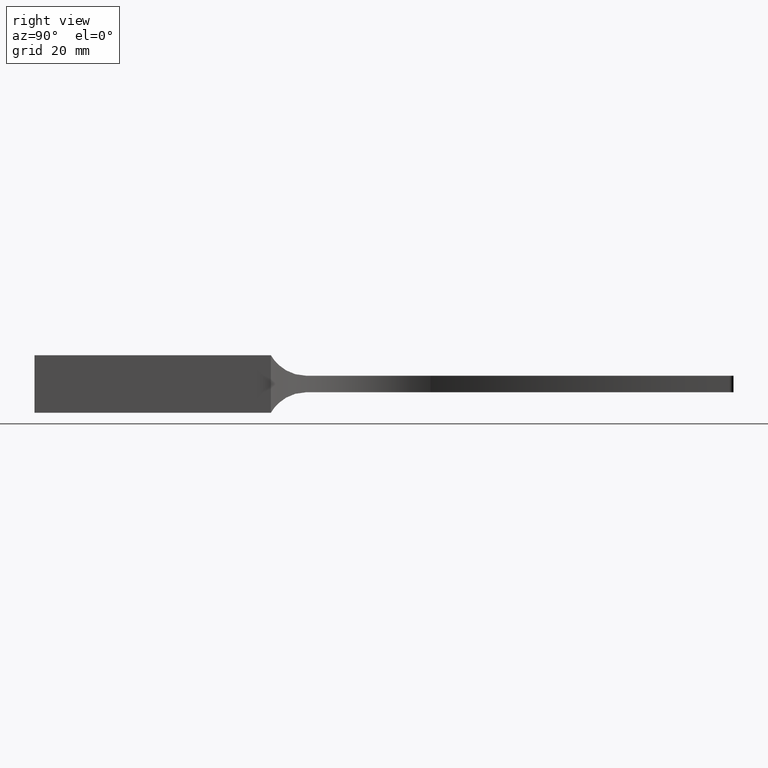
[diagram: clean part render]
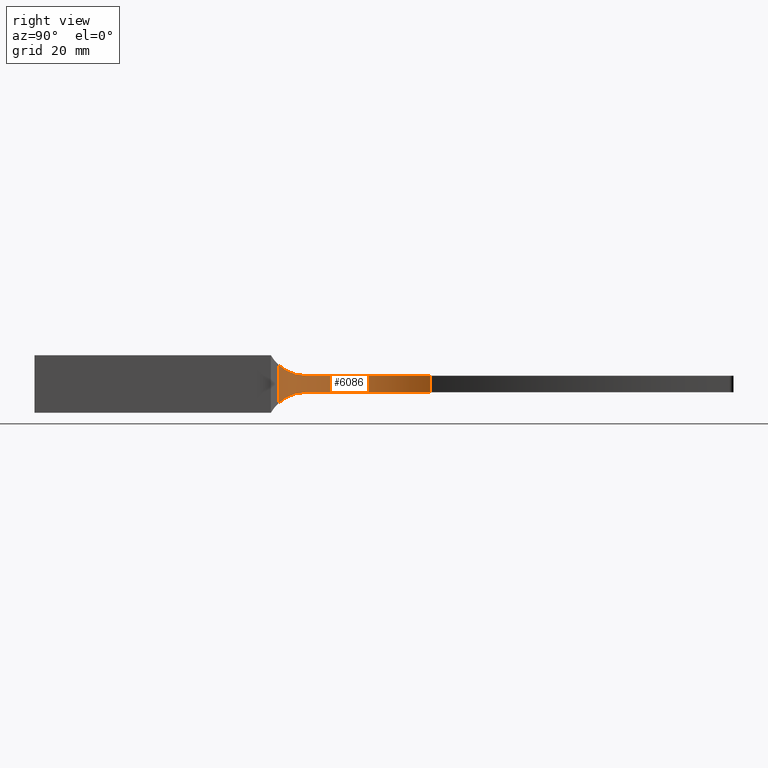
[diagram: same view with one face highlighted and labeled with its STEP entity id]
A machine part, right view. The second image highlights one B-rep face of the part: STEP entity #6086.
In plain terms, the highlighted cylindrical surface (partial cylindrical patch) has radius 26 mm, axis along (-0, -0, -1).
Its self-contained STEP definition (entity closure, byte-faithful):
#116 = DIRECTION ( 'NONE',  ( -0.0000000000000000000, 0.0000000000000000000, 1.000000000000000000 ) ) ;
#469 = CARTESIAN_POINT ( 'NONE',  ( 18.43476238035067300, 65.43425512295479500, -2.020242681155177700 ) ) ;
#896 = CARTESIAN_POINT ( 'NONE',  ( 17.78402066115250000, 64.73031084797040100, 2.080495572099116500 ) ) ;
#1081 = CYLINDRICAL_SURFACE ( 'NONE', #3604, 26.00000000000004300 ) ;
#1195 = EDGE_LOOP ( 'NONE', ( #8853, #5614, #6985, #1654, #2553, #6291 ) ) ;
#1211 = CARTESIAN_POINT ( 'NONE',  ( 19.06886061593461800, 66.16025403784439600, -2.000000000000000000 ) ) ;
#1479 = EDGE_CURVE ( 'NONE', #9373, #7909, #3839, .T. ) ;
#1529 = CARTESIAN_POINT ( 'NONE',  ( 21.57350175787799500, 96.31814398917801200, -2.000000000000000000 ) ) ;
#1614 = CARTESIAN_POINT ( 'NONE',  ( 16.39938269061379500, 63.44127846361297400, 2.371450443069547600 ) ) ;
#1644 = AXIS2_PLACEMENT_3D ( 'NONE', #4478, #116, #5199 ) ;
#1654 = ORIENTED_EDGE ( 'NONE', *, *, #5670, .T. ) ;
#2083 = CARTESIAN_POINT ( 'NONE',  ( 10.29642975987606800, 59.45247741029773900, 4.583415023412808200 ) ) ;
#2267 = VERTEX_POINT ( 'NONE', #6022 ) ;
#2341 = CARTESIAN_POINT ( 'NONE',  ( 15.31177591070957100, 62.53835867823524800, 2.673961191489671500 ) ) ;
#2479 = CARTESIAN_POINT ( 'NONE',  ( -0.7499999999999972200, 82.98918044109893800, 2.000000000000000000 ) ) ;
#2553 = ORIENTED_EDGE ( 'NONE', *, *, #8413, .F. ) ;
#2619 = CARTESIAN_POINT ( 'NONE',  ( 11.89181537012534000, 60.25117924741148600, -3.913110207739906700 ) ) ;
#3062 = CARTESIAN_POINT ( 'NONE',  ( 11.91248342311633300, 60.21093636930370300, 3.897442531459418500 ) ) ;
#3352 = CARTESIAN_POINT ( 'NONE',  ( 14.21209123578458000, 61.70568944562301500, -3.026556337434830500 ) ) ;
#3414 = CARTESIAN_POINT ( 'NONE',  ( -0.7499999999999972200, 82.98918044109893800, -2.000000000000000000 ) ) ;
#3471 = FACE_OUTER_BOUND ( 'NONE', #1195, .T. ) ;
#3604 = AXIS2_PLACEMENT_3D ( 'NONE', #2479, #6813, #5776 ) ;
#3839 = B_SPLINE_CURVE_WITH_KNOTS ( 'NONE', 3,
 ( #6225, #6965, #2619, #7713, #3352, #8439, #4084, #9150, #4810, #469, #5544, #1211 ),
 .UNSPECIFIED., .F., .F.,
 ( 4, 2, 2, 2, 2, 4 ),
 ( 0.006676169963743536400, 0.009523051192820774400, 0.01236993242189801300, 0.01521681365097525200, 0.01664025426551386100, 0.01806369488005247000 ),
 .UNSPECIFIED. ) ;
#3906 = CARTESIAN_POINT ( 'NONE',  ( 10.29642975987627700, 59.45247741029783100, 2.000000000000000000 ) ) ;
#4065 = CARTESIAN_POINT ( 'NONE',  ( 10.29642975987627600, 59.45247741029783100, -4.583415023412725600 ) ) ;
#4084 = CARTESIAN_POINT ( 'NONE',  ( 16.39616791289249100, 63.42105950941570600, -2.359413501394681800 ) ) ;
#4154 = DIRECTION ( 'NONE',  ( 1.000000000000000000, 0.0000000000000000000, 0.0000000000000000000 ) ) ;
#4366 = VERTEX_POINT ( 'NONE', #2083 ) ;
#4478 = CARTESIAN_POINT ( 'NONE',  ( -0.7499999999999972200, 82.98918044109893800, 2.000000000000000000 ) ) ;
#4572 = EDGE_CURVE ( 'NONE', #6845, #4366, #8790, .T. ) ;
#4633 = DIRECTION ( 'NONE',  ( -0.0000000000000000000, -0.0000000000000000000, -1.000000000000000000 ) ) ;
#4762 = VECTOR ( 'NONE', #6928, 1000.000000000000000 ) ;
#4810 = CARTESIAN_POINT ( 'NONE',  ( 17.77356684978984800, 64.73793441027952200, -2.095473890967762400 ) ) ;
#4879 = CARTESIAN_POINT ( 'NONE',  ( 19.06886061593461800, 66.16025403784439600, -2.000000000000000000 ) ) ;
#5066 = CIRCLE ( 'NONE', #8149, 26.00000000000004300 ) ;
#5199 = DIRECTION ( 'NONE',  ( 1.000000000000000000, 0.0000000000000000000, 0.0000000000000000000 ) ) ;
#5544 = CARTESIAN_POINT ( 'NONE',  ( 18.75634394030882000, 65.79221365986846600, -2.000000000000000400 ) ) ;
#5614 = ORIENTED_EDGE ( 'NONE', *, *, #8780, .T. ) ;
#5670 = EDGE_CURVE ( 'NONE', #7909, #6728, #5066, .T. ) ;
#5776 = DIRECTION ( 'NONE',  ( -1.000000000000000000, 0.0000000000000000000, 0.0000000000000000000 ) ) ;
#5846 = CIRCLE ( 'NONE', #1644, 26.00000000000004300 ) ;
#5866 = CARTESIAN_POINT ( 'NONE',  ( 19.06886061593461800, 66.16025403784439600, 2.000000000000000000 ) ) ;
#5902 = EDGE_CURVE ( 'NONE', #6845, #2267, #5846, .T. ) ;
#5949 = CARTESIAN_POINT ( 'NONE',  ( 16.75128107919410800, 63.75563628619161700, 2.287732506062786000 ) ) ;
#6022 = CARTESIAN_POINT ( 'NONE',  ( 21.57350175787799500, 96.31814398917801200, 2.000000000000000000 ) ) ;
#6086 = ADVANCED_FACE ( 'NONE', ( #3471 ), #1081, .T. ) ;
#6198 = CARTESIAN_POINT ( 'NONE',  ( 21.57350175787799500, 96.31814398917801200, 2.000000000000000000 ) ) ;
#6225 = CARTESIAN_POINT ( 'NONE',  ( 10.29642975987627600, 59.45247741029783100, -4.583415023412725600 ) ) ;
#6291 = ORIENTED_EDGE ( 'NONE', *, *, #5902, .F. ) ;
#6669 = LINE ( 'NONE', #6198, #4762 ) ;
#6673 = CARTESIAN_POINT ( 'NONE',  ( 19.06886061593461800, 66.16025403784439600, 2.000000000000000000 ) ) ;
#6674 = CARTESIAN_POINT ( 'NONE',  ( 15.68019758564478200, 62.83302987390990100, 2.564356190144580200 ) ) ;
#6728 = VERTEX_POINT ( 'NONE', #1529 ) ;
#6776 = VECTOR ( 'NONE', #4633, 1000.000000000000000 ) ;
#6813 = DIRECTION ( 'NONE',  ( -0.0000000000000000000, -0.0000000000000000000, -1.000000000000000000 ) ) ;
#6845 = VERTEX_POINT ( 'NONE', #6673 ) ;
#6928 = DIRECTION ( 'NONE',  ( -0.0000000000000000000, -0.0000000000000000000, -1.000000000000000000 ) ) ;
#6965 = CARTESIAN_POINT ( 'NONE',  ( 11.09999648839373300, 59.82961363928986700, -4.242321974493349600 ) ) ;
#6985 = ORIENTED_EDGE ( 'NONE', *, *, #1479, .T. ) ;
#7417 = CARTESIAN_POINT ( 'NONE',  ( 13.45560009347295800, 61.13353986708263900, 3.269469758013280100 ) ) ;
#7713 = CARTESIAN_POINT ( 'NONE',  ( 13.45435604436487500, 61.19311511954642700, -3.302731327743184200 ) ) ;
#7909 = VERTEX_POINT ( 'NONE', #4879 ) ;
#8149 = AXIS2_PLACEMENT_3D ( 'NONE', #3414, #8506, #4154 ) ;
#8155 = CARTESIAN_POINT ( 'NONE',  ( 10.29642975987606800, 59.45247741029773900, 4.583415023412808200 ) ) ;
#8413 = EDGE_CURVE ( 'NONE', #2267, #6728, #6669, .T. ) ;
#8439 = CARTESIAN_POINT ( 'NONE',  ( 15.68300957425141800, 62.81971442350177200, -2.555073745311142700 ) ) ;
#8506 = DIRECTION ( 'NONE',  ( -0.0000000000000000000, 0.0000000000000000000, 1.000000000000000000 ) ) ;
#8780 = EDGE_CURVE ( 'NONE', #4366, #9373, #8933, .T. ) ;
#8790 = B_SPLINE_CURVE_WITH_KNOTS ( 'NONE', 3,
 ( #5866, #8835, #896, #5949, #1614, #6674, #2341, #7417, #3062, #8155 ),
 .UNSPECIFIED., .F., .F.,
 ( 4, 2, 2, 2, 4 ),
 ( 0.0000000000000000000, 0.002869357970956323500, 0.004304036956434474800, 0.005738715941912626200, 0.01147743188382527800 ),
 .UNSPECIFIED. ) ;
#8835 = CARTESIAN_POINT ( 'NONE',  ( 18.44197706175112500, 65.42199436012772700, 1.999999999999999600 ) ) ;
#8853 = ORIENTED_EDGE ( 'NONE', *, *, #4572, .T. ) ;
#8933 = LINE ( 'NONE', #3906, #6776 ) ;
#9150 = CARTESIAN_POINT ( 'NONE',  ( 17.43289232592080800, 64.39864428994144400, -2.150748517196365000 ) ) ;
#9373 = VERTEX_POINT ( 'NONE', #4065 ) ;